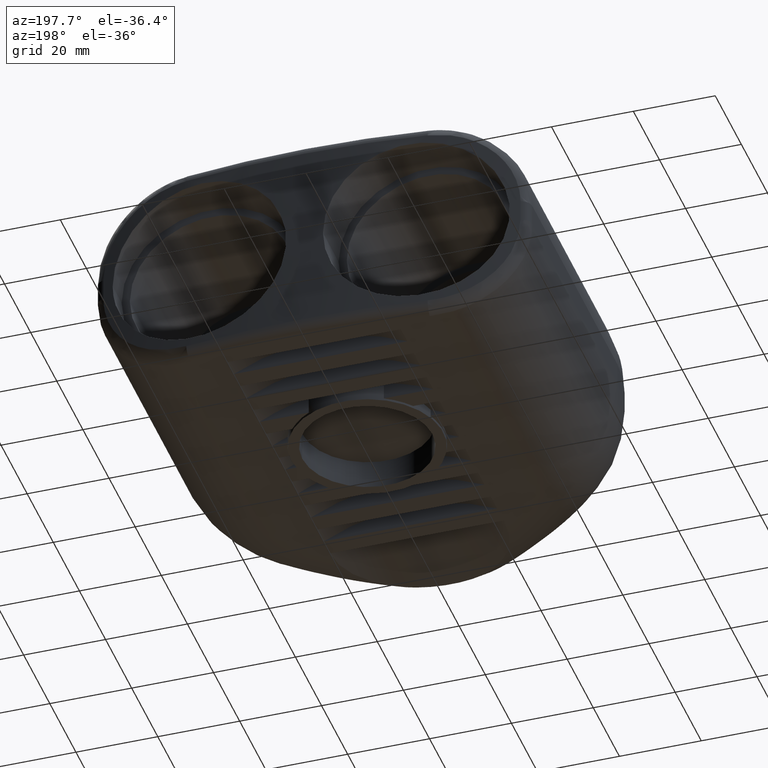
[diagram: clean part render]
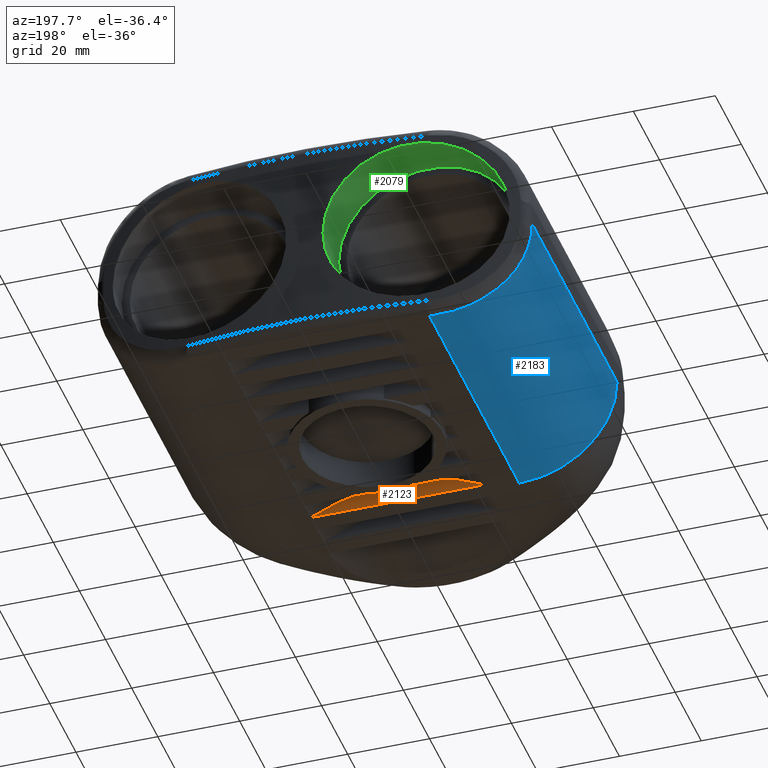
[diagram: same view with three faces highlighted in distinct colors, each labeled with its STEP entity id]
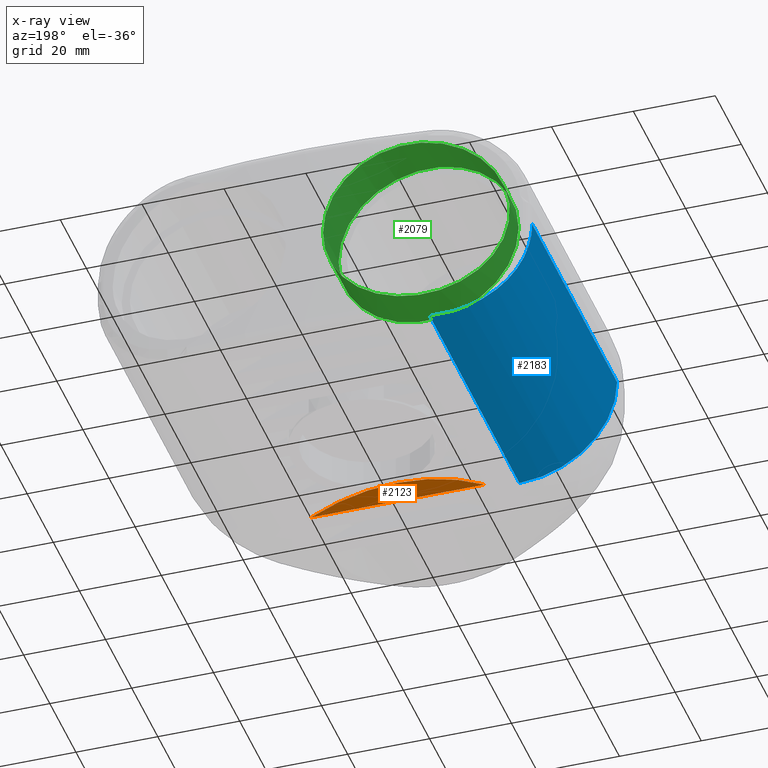
[diagram: x-ray of the same camera — body ghosted, the three highlighted faces saturated]
A machine part, auxiliary view with three faces highlighted in distinct colors.
The next image is the same camera in x-ray (body ghosted, the three faces saturated) — at least one of them is partly hidden behind the body in this view.
Their STEP definitions:

[orange] entity #2123 — the highlighted planar face has unit normal (0, -1, -0).
#58=LINE('',#3532,#196);
#196=VECTOR('',#2598,42.4);
#382=PLANE('',#2321);
#502=FACE_OUTER_BOUND('',#655,.T.);
#655=EDGE_LOOP('',(#1654,#1655));
#802=CIRCLE('',#2319,45.05);
#939=VERTEX_POINT('',#3529);
#940=VERTEX_POINT('',#3531);
#1154=EDGE_CURVE('',#939,#940,#58,.T.);
#1229=EDGE_CURVE('',#940,#939,#802,.T.);
#1654=ORIENTED_EDGE('',*,*,#1229,.F.);
#1655=ORIENTED_EDGE('',*,*,#1154,.F.);
#2123=ADVANCED_FACE('',(#502),#382,.F.);
#2319=AXIS2_PLACEMENT_3D('',#3741,#2759,#2760);
#2321=AXIS2_PLACEMENT_3D('',#3743,#2763,#2764);
#2598=DIRECTION('',(1.,8.8026292149017E-18,0.));
#2759=DIRECTION('center_axis',(8.8026292149016E-18,-1.,-6.55586553069415E-31));
#2760=DIRECTION('ref_axis',(0.470588235294118,4.14241374818957E-18,-0.88235294117647));
#2763=DIRECTION('center_axis',(8.8026292149017E-18,-1.,-9.79087921713246E-31));
#2764=DIRECTION('ref_axis',(0.,0.,-1.));
#3529=CARTESIAN_POINT('',(-21.2,27.06,-26.5));
#3531=CARTESIAN_POINT('',(21.2,27.06,-26.5));
#3532=CARTESIAN_POINT('',(1.99327239514782E-15,27.06,-26.5));
#3741=CARTESIAN_POINT('Origin',(-4.33089357373159E-17,27.06,-66.25));
#3743=CARTESIAN_POINT('Origin',(-7.22170536132653E-15,27.06,-24.9569669574203));

[blue] entity #2183 — the highlighted cylindrical surface (partial cylindrical patch) has radius 23.85 mm, axis along (0, 1, 0).
#37=LINE('',#3483,#175);
#162=LINE('',#4331,#300);
#175=VECTOR('',#2569,68.7192285895776);
#300=VECTOR('',#3054,64.9749323297176);
#348=B_SPLINE_CURVE_WITH_KNOTS('',3,(#4313,#4314,#4315,#4316,#4317,#4318,
#4319),.UNSPECIFIED.,.F.,.F.,(4,1,1,1,4),(-3.35426451014014,-2.39590322152867,
-1.4375419329172,-0.479180644305734,0.),.UNSPECIFIED.);
#562=FACE_OUTER_BOUND('',#722,.T.);
#722=EDGE_LOOP('',(#1939,#1940,#1941,#1942));
#862=CIRCLE('',#2435,23.85);
#915=VERTEX_POINT('',#3480);
#916=VERTEX_POINT('',#3482);
#1073=VERTEX_POINT('',#4272);
#1075=VERTEX_POINT('',#4330);
#1129=EDGE_CURVE('',#916,#915,#37,.T.);
#1371=EDGE_CURVE('',#916,#1073,#348,.T.);
#1374=EDGE_CURVE('',#1075,#1073,#162,.T.);
#1377=EDGE_CURVE('',#1075,#915,#862,.T.);
#1939=ORIENTED_EDGE('',*,*,#1371,.F.);
#1940=ORIENTED_EDGE('',*,*,#1129,.T.);
#1941=ORIENTED_EDGE('',*,*,#1377,.F.);
#1942=ORIENTED_EDGE('',*,*,#1374,.T.);
#2056=CYLINDRICAL_SURFACE('',#2434,23.85);
#2183=ADVANCED_FACE('',(#562),#2056,.T.);
#2434=AXIS2_PLACEMENT_3D('',#4335,#3057,#3058);
#2435=AXIS2_PLACEMENT_3D('',#4336,#3059,#3060);
#2569=DIRECTION('',(-1.10137506666321E-16,-1.,0.));
#3054=DIRECTION('',(1.10137506666321E-16,1.,0.));
#3057=DIRECTION('center_axis',(1.10137506666321E-16,1.,0.));
#3058=DIRECTION('ref_axis',(-0.707106781186547,0.,-0.707106781186548));
#3059=DIRECTION('center_axis',(0.,-1.,0.));
#3060=DIRECTION('ref_axis',(-1.,0.,0.));
#3480=CARTESIAN_POINT('',(-29.15,25.1662549962479,-26.5));
#3482=CARTESIAN_POINT('',(-29.15,93.8854835858255,-26.5));
#3483=CARTESIAN_POINT('',(-29.15,68.0383474023474,-26.5));
#4272=CARTESIAN_POINT('',(-53.,90.1411873259654,-2.65));
#4313=CARTESIAN_POINT('Ctrl Pts',(-29.1499999999999,93.8854835858255,-26.5));
#4314=CARTESIAN_POINT('Ctrl Pts',(-32.714567983132,93.4784853974829,-26.5));
#4315=CARTESIAN_POINT('Ctrl Pts',(-39.8164968175114,92.5240112753433,-24.8775939069698));
#4316=CARTESIAN_POINT('Ctrl Pts',(-48.3810375321924,91.0555291475012,-18.092525282838));
#4317=CARTESIAN_POINT('Ctrl Pts',(-52.3929620664395,90.2623483634228,-9.84157609257091));
#4318=CARTESIAN_POINT('Ctrl Pts',(-53.,90.1411873259655,-4.44692741614651));
#4319=CARTESIAN_POINT('Ctrl Pts',(-53.,90.1411873259655,-2.65000000000001));
#4330=CARTESIAN_POINT('',(-53.,25.1662549962479,-2.65));
#4331=CARTESIAN_POINT('',(-53.,68.0383474023474,-2.65));
#4335=CARTESIAN_POINT('Origin',(-29.15,68.0383474023474,-2.65));
#4336=CARTESIAN_POINT('Origin',(-29.15,25.1662549962479,-2.65));

[green] entity #2079 — the highlighted cylindrical surface (bore or boss wall) has radius 22 mm, axis along (0, -1, 0).
#320=B_SPLINE_CURVE_WITH_KNOTS('',3,(#3317,#3318,#3319,#3320,#3321,#3322,
#3323,#3324,#3325,#3326,#3327,#3328,#3329,#3330,#3331,#3332,#3333,#3334,
#3335,#3336,#3337,#3338,#3339,#3340,#3341,#3342,#3343,#3344,#3345,#3346,
#3347,#3348,#3349,#3350,#3351,#3352,#3353,#3354,#3355,#3356,#3357,#3358,
#3359,#3360,#3361,#3362,#3363,#3364,#3365,#3366,#3367,#3368,#3369,#3370,
#3371,#3372,#3373,#3374,#3375,#3376,#3377,#3378,#3379,#3380,#3381,#3382),
 .UNSPECIFIED.,.T.,.F.,(4,2,2,2,2,2,2,2,2,2,2,2,2,2,2,2,2,2,2,2,2,2,2,2,
2,2,2,2,2,2,2,2,4),(0.,0.414306269431165,0.82861253886233,1.2429188082935,
1.65722507772466,2.07296500318938,2.4887049286541,2.90444485411882,3.32018477958354,
3.73951404932937,4.15884331907521,4.57817258882104,4.99750185856688,5.41218530696787,
5.82686875536887,6.24155220376987,6.65623565217086,7.07091910057186,7.48560254897286,
7.90028599737385,8.31496944577485,8.73429871552068,9.15362798526652,9.57295725501235,
9.99228652475818,10.4080264502229,10.8237663756876,11.2395063011523,11.6552462266171,
12.0695524960482,12.4838587654794,12.8981650349106,13.3124713043417),
 .UNSPECIFIED.);
#421=FACE_BOUND('',#597,.T.);
#458=FACE_OUTER_BOUND('',#596,.T.);
#596=EDGE_LOOP('',(#1440));
#597=EDGE_LOOP('',(#1441));
#760=CIRCLE('',#2235,22.);
#902=VERTEX_POINT('',#3316);
#903=VERTEX_POINT('',#3383);
#1116=EDGE_CURVE('',#902,#902,#320,.T.);
#1117=EDGE_CURVE('',#903,#903,#760,.T.);
#1440=ORIENTED_EDGE('',*,*,#1116,.F.);
#1441=ORIENTED_EDGE('',*,*,#1117,.T.);
#2022=CYLINDRICAL_SURFACE('',#2234,22.);
#2079=ADVANCED_FACE('',(#458,#421),#2022,.F.);
#2234=AXIS2_PLACEMENT_3D('',#3315,#2528,#2529);
#2235=AXIS2_PLACEMENT_3D('',#3384,#2530,#2531);
#2528=DIRECTION('center_axis',(0.,-1.,0.));
#2529=DIRECTION('ref_axis',(1.,0.,0.));
#2530=DIRECTION('center_axis',(0.,-1.,0.));
#2531=DIRECTION('ref_axis',(1.,0.,0.));
#3315=CARTESIAN_POINT('Origin',(-26.5,98.3999999999999,0.));
#3316=CARTESIAN_POINT('',(-4.5,98.3562497234607,0.));
#3317=CARTESIAN_POINT('Ctrl Pts',(-4.5,98.3562497234607,0.));
#3318=CARTESIAN_POINT('Ctrl Pts',(-4.5,98.3562497234607,1.38102089810388));
#3319=CARTESIAN_POINT('Ctrl Pts',(-4.6321337968594,98.3538098735887,2.80920788106796));
#3320=CARTESIAN_POINT('Ctrl Pts',(-5.1887181348813,98.3419987113556,5.65017579029598));
#3321=CARTESIAN_POINT('Ctrl Pts',(-5.61305036651279,98.3326075378535,7.06297981112476));
#3322=CARTESIAN_POINT('Ctrl Pts',(-6.73522432162785,98.3026617496616,9.77261430280936));
#3323=CARTESIAN_POINT('Ctrl Pts',(-7.43396230783962,98.2819930428039,11.0716050926513));
#3324=CARTESIAN_POINT('Ctrl Pts',(-9.04853750345553,98.2244660633297,13.4737036234342));
#3325=CARTESIAN_POINT('Ctrl Pts',(-9.96447244759123,98.1874658543598,14.5767422690158));
#3326=CARTESIAN_POINT('Ctrl Pts',(-11.9193876299097,98.0949565792367,16.5325145388118));
#3327=CARTESIAN_POINT('Ctrl Pts',(-13.0255483769851,98.0363288340869,17.45114693325));
#3328=CARTESIAN_POINT('Ctrl Pts',(-15.4330583367707,97.8880364805803,19.0689847145122));
#3329=CARTESIAN_POINT('Ctrl Pts',(-16.7343326975393,97.7982479158891,19.7682901220412));
#3330=CARTESIAN_POINT('Ctrl Pts',(-19.4464364619885,97.5856154925425,20.8902080540463));
#3331=CARTESIAN_POINT('Ctrl Pts',(-20.859457468562,97.4625086358819,21.3137383679561));
#3332=CARTESIAN_POINT('Ctrl Pts',(-23.6978881267326,97.1880141156272,21.86868382676));
#3333=CARTESIAN_POINT('Ctrl Pts',(-25.1233136824596,97.0365908292077,22.));
#3334=CARTESIAN_POINT('Ctrl Pts',(-27.8885721164692,96.7178836809411,22.));
#3335=CARTESIAN_POINT('Ctrl Pts',(-29.3228937293156,96.5394915431299,21.8664460144944));
#3336=CARTESIAN_POINT('Ctrl Pts',(-32.1735120831302,96.1573974969311,21.3054324281937));
#3337=CARTESIAN_POINT('Ctrl Pts',(-33.5898411840542,95.9537249138025,20.8781172919417));
#3338=CARTESIAN_POINT('Ctrl Pts',(-36.3049322206456,95.5390078480373,19.7490488854309));
#3339=CARTESIAN_POINT('Ctrl Pts',(-37.6058068313806,95.3277307887827,19.0464346473169));
#3340=CARTESIAN_POINT('Ctrl Pts',(-40.0112390212757,94.9186043035376,17.4227448538484));
#3341=CARTESIAN_POINT('Ctrl Pts',(-41.1157401584812,94.7208927143848,16.5015509563398));
#3342=CARTESIAN_POINT('Ctrl Pts',(-43.0603454343596,94.3612305748949,14.5476345871224));
#3343=CARTESIAN_POINT('Ctrl Pts',(-43.9694293996467,94.1865548415797,13.4496757927443));
#3344=CARTESIAN_POINT('Ctrl Pts',(-45.573950223437,93.8701996210482,11.0570866560817));
#3345=CARTESIAN_POINT('Ctrl Pts',(-46.2694822695788,93.7286453868282,9.76250359013625));
#3346=CARTESIAN_POINT('Ctrl Pts',(-47.3877767223302,93.4976045926313,7.05972251893855));
#3347=CARTESIAN_POINT('Ctrl Pts',(-47.8114383339471,93.4080304162702,5.64929159123293));
#3348=CARTESIAN_POINT('Ctrl Pts',(-48.3676135534697,93.2898924065748,2.81058300025897));
#3349=CARTESIAN_POINT('Ctrl Pts',(-48.5,93.2613829564399,1.38227816133666));
#3350=CARTESIAN_POINT('Ctrl Pts',(-48.5,93.2613829564399,-1.38227816133665));
#3351=CARTESIAN_POINT('Ctrl Pts',(-48.3676135534697,93.2898924065748,-2.81058300025897));
#3352=CARTESIAN_POINT('Ctrl Pts',(-47.8114383339471,93.4080304162702,-5.64929159123293));
#3353=CARTESIAN_POINT('Ctrl Pts',(-47.3877767223302,93.4976045926313,-7.05972251893856));
#3354=CARTESIAN_POINT('Ctrl Pts',(-46.2694822695788,93.7286453868282,-9.76250359013627));
#3355=CARTESIAN_POINT('Ctrl Pts',(-45.573950223437,93.8701996210482,-11.0570866560817));
#3356=CARTESIAN_POINT('Ctrl Pts',(-43.9694293996467,94.1865548415797,-13.4496757927443));
#3357=CARTESIAN_POINT('Ctrl Pts',(-43.0603454343596,94.3612305748949,-14.5476345871224));
#3358=CARTESIAN_POINT('Ctrl Pts',(-41.1157401584812,94.7208927143849,-16.5015509563398));
#3359=CARTESIAN_POINT('Ctrl Pts',(-40.0112390212757,94.9186043035376,-17.4227448538484));
#3360=CARTESIAN_POINT('Ctrl Pts',(-37.6058068313806,95.3277307887827,-19.0464346473169));
#3361=CARTESIAN_POINT('Ctrl Pts',(-36.3049322206456,95.5390078480373,-19.7490488854309));
#3362=CARTESIAN_POINT('Ctrl Pts',(-33.5898411840542,95.9537249138025,-20.8781172919417));
#3363=CARTESIAN_POINT('Ctrl Pts',(-32.1735120831302,96.1573974969311,-21.3054324281937));
#3364=CARTESIAN_POINT('Ctrl Pts',(-29.3228937293156,96.5394915431298,-21.8664460144944));
#3365=CARTESIAN_POINT('Ctrl Pts',(-27.8885721164692,96.7178836809411,-22.));
#3366=CARTESIAN_POINT('Ctrl Pts',(-25.1233136824596,97.0365908292077,-22.));
#3367=CARTESIAN_POINT('Ctrl Pts',(-23.6978881267326,97.1880141156273,-21.86868382676));
#3368=CARTESIAN_POINT('Ctrl Pts',(-20.8594574685621,97.4625086358819,-21.3137383679561));
#3369=CARTESIAN_POINT('Ctrl Pts',(-19.4464364619885,97.5856154925425,-20.8902080540463));
#3370=CARTESIAN_POINT('Ctrl Pts',(-16.7343326975393,97.7982479158891,-19.7682901220412));
#3371=CARTESIAN_POINT('Ctrl Pts',(-15.4330583367707,97.8880364805802,-19.0689847145123));
#3372=CARTESIAN_POINT('Ctrl Pts',(-13.0255483769851,98.0363288340868,-17.45114693325));
#3373=CARTESIAN_POINT('Ctrl Pts',(-11.9193876299097,98.0949565792367,-16.5325145388118));
#3374=CARTESIAN_POINT('Ctrl Pts',(-9.96447244759124,98.1874658543598,-14.5767422690158));
#3375=CARTESIAN_POINT('Ctrl Pts',(-9.04853750345554,98.2244660633297,-13.4737036234342));
#3376=CARTESIAN_POINT('Ctrl Pts',(-7.43396230783962,98.2819930428039,-11.0716050926513));
#3377=CARTESIAN_POINT('Ctrl Pts',(-6.73522432162786,98.3026617496616,-9.77261430280936));
#3378=CARTESIAN_POINT('Ctrl Pts',(-5.61305036651279,98.3326075378535,-7.06297981112477));
#3379=CARTESIAN_POINT('Ctrl Pts',(-5.1887181348813,98.3419987113556,-5.65017579029598));
#3380=CARTESIAN_POINT('Ctrl Pts',(-4.6321337968594,98.3538098735887,-2.80920788106796));
#3381=CARTESIAN_POINT('Ctrl Pts',(-4.5,98.3562497234607,-1.38102089810388));
#3382=CARTESIAN_POINT('Ctrl Pts',(-4.5,98.3562497234607,5.55111512312578E-16));
#3383=CARTESIAN_POINT('',(-48.5,86.3999999999999,2.69422295812418E-15));
#3384=CARTESIAN_POINT('Origin',(-26.5,86.3999999999999,0.));